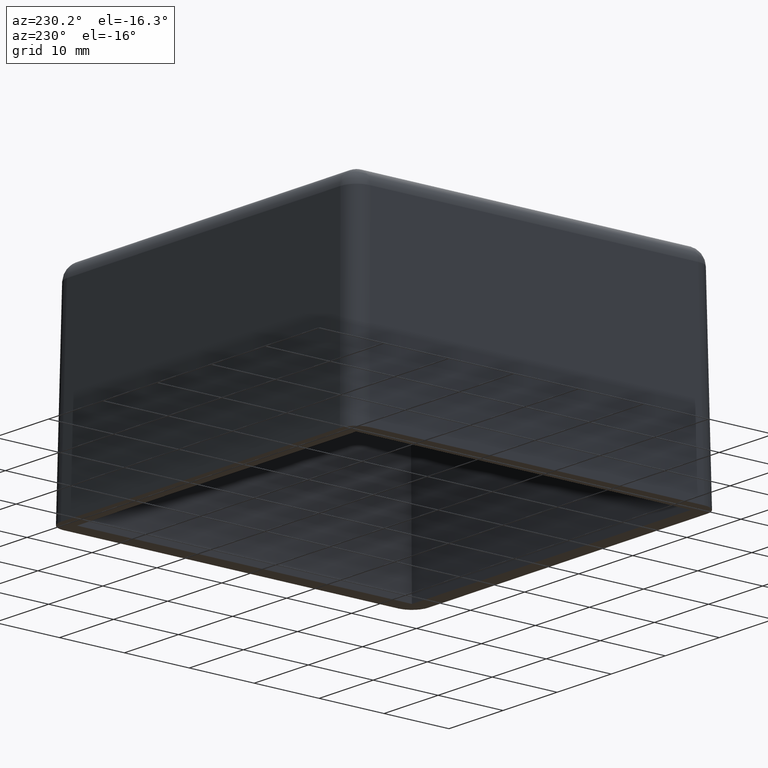
[diagram: clean part render]
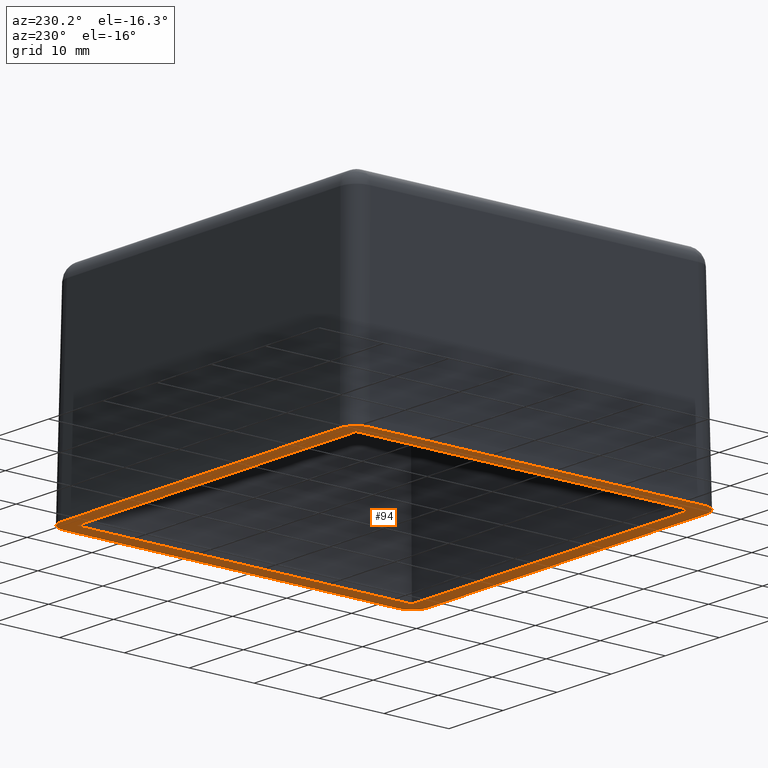
[diagram: same view with one face highlighted and labeled with its STEP entity id]
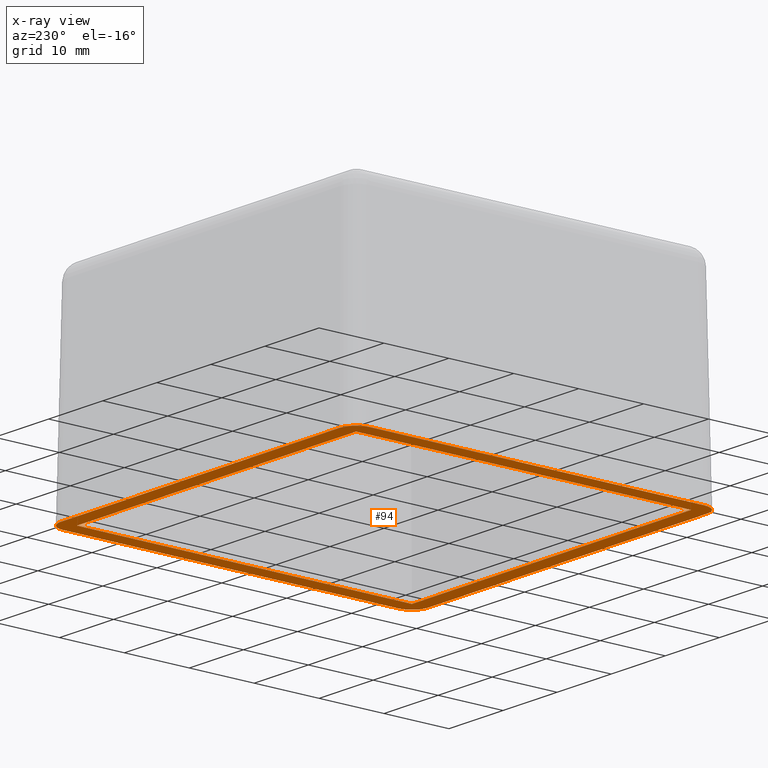
[diagram: x-ray of the same camera — body ghosted, the highlighted face saturated]
A machine part, auxiliary view. The second image highlights one B-rep face of the part: STEP entity #94.
The next image is the same camera in x-ray: the body ghosted, the highlighted face saturated — about 0% of this face is hidden behind the body in this view.
In plain terms, the highlighted planar face has unit normal (0, 0, 1).
Its self-contained STEP definition (entity closure, byte-faithful):
#94 = ADVANCED_FACE( '', ( #205, #206 ), #207, .F. );
#205 = FACE_BOUND( '', #383, .T. );
#206 = FACE_OUTER_BOUND( '', #384, .T. );
#207 = PLANE( '', #385 );
#383 = EDGE_LOOP( '', ( #733, #734, #735, #736 ) );
#384 = EDGE_LOOP( '', ( #737, #738, #739, #740, #741, #742, #743, #744 ) );
#385 = AXIS2_PLACEMENT_3D( '', #745, #746, #747 );
#733 = ORIENTED_EDGE( '', *, *, #1284, .T. );
#734 = ORIENTED_EDGE( '', *, *, #1285, .T. );
#735 = ORIENTED_EDGE( '', *, *, #1286, .T. );
#736 = ORIENTED_EDGE( '', *, *, #1287, .T. );
#737 = ORIENTED_EDGE( '', *, *, #1238, .F. );
#738 = ORIENTED_EDGE( '', *, *, #1269, .T. );
#739 = ORIENTED_EDGE( '', *, *, #1272, .F. );
#740 = ORIENTED_EDGE( '', *, *, #1281, .T. );
#741 = ORIENTED_EDGE( '', *, *, #1283, .F. );
#742 = ORIENTED_EDGE( '', *, *, #1288, .T. );
#743 = ORIENTED_EDGE( '', *, *, #1289, .F. );
#744 = ORIENTED_EDGE( '', *, *, #1290, .T. );
#745 = CARTESIAN_POINT( '', ( -28.3000000000000, -28.3000000000000, 0.000000000000000 ) );
#746 = DIRECTION( '', ( 0.000000000000000, 0.000000000000000, 1.00000000000000 ) );
#747 = DIRECTION( '', ( 0.000000000000000, -1.00000000000000, 0.000000000000000 ) );
#1238 = EDGE_CURVE( '', #1477, #1472, #1479, .F. );
#1269 = EDGE_CURVE( '', #1477, #1531, #1533, .F. );
#1272 = EDGE_CURVE( '', #1536, #1531, #1538, .F. );
#1281 = EDGE_CURVE( '', #1536, #1548, #1550, .F. );
#1283 = EDGE_CURVE( '', #1551, #1548, #1553, .F. );
#1284 = EDGE_CURVE( '', #1554, #1555, #1556, .F. );
#1285 = EDGE_CURVE( '', #1555, #1557, #1558, .F. );
#1286 = EDGE_CURVE( '', #1557, #1559, #1560, .F. );
#1287 = EDGE_CURVE( '', #1559, #1554, #1561, .F. );
#1288 = EDGE_CURVE( '', #1551, #1562, #1563, .F. );
#1289 = EDGE_CURVE( '', #1564, #1562, #1565, .F. );
#1290 = EDGE_CURVE( '', #1564, #1472, #1566, .F. );
#1472 = VERTEX_POINT( '', #1880 );
#1477 = VERTEX_POINT( '', #1887 );
#1479 = LINE( '', #1890, #1891 );
#1531 = VERTEX_POINT( '', #2044 );
#1533 = ELLIPSE( '', #2047, 2.50076158222762, 2.50000000000000 );
#1536 = VERTEX_POINT( '', #2051 );
#1538 = LINE( '', #2054, #2055 );
#1548 = VERTEX_POINT( '', #2066 );
#1550 = ELLIPSE( '', #2069, 2.50076158222762, 2.50000000000000 );
#1551 = VERTEX_POINT( '', #2070 );
#1553 = LINE( '', #2073, #2074 );
#1554 = VERTEX_POINT( '', #2075 );
#1555 = VERTEX_POINT( '', #2076 );
#1556 = LINE( '', #2077, #2078 );
#1557 = VERTEX_POINT( '', #2079 );
#1558 = LINE( '', #2080, #2081 );
#1559 = VERTEX_POINT( '', #2082 );
#1560 = LINE( '', #2083, #2084 );
#1561 = LINE( '', #2085, #2086 );
#1562 = VERTEX_POINT( '', #2087 );
#1563 = ELLIPSE( '', #2088, 2.50076158222762, 2.50000000000000 );
#1564 = VERTEX_POINT( '', #2089 );
#1565 = LINE( '', #2090, #2091 );
#1566 = ELLIPSE( '', #2092, 2.50076158222762, 2.50000000000000 );
#1880 = CARTESIAN_POINT( '', ( -28.3000000000000, -25.8003807621090, 0.000000000000000 ) );
#1887 = CARTESIAN_POINT( '', ( -28.3000000000000, 25.8003807621090, 0.000000000000000 ) );
#1890 = CARTESIAN_POINT( '', ( -28.3000000000000, -28.3000000000000, 0.000000000000000 ) );
#1891 = VECTOR( '', #2351, 1000.00000000000 );
#2044 = CARTESIAN_POINT( '', ( -25.8003807621090, 28.3000000000000, 0.000000000000000 ) );
#2047 = AXIS2_PLACEMENT_3D( '', #2375, #2376, #2377 );
#2051 = CARTESIAN_POINT( '', ( 25.8003807621090, 28.3000000000000, 0.000000000000000 ) );
#2054 = CARTESIAN_POINT( '', ( -28.3000000000000, 28.3000000000000, 0.000000000000000 ) );
#2055 = VECTOR( '', #2380, 1000.00000000000 );
#2066 = CARTESIAN_POINT( '', ( 28.3000000000000, 25.8003807621090, 0.000000000000000 ) );
#2069 = AXIS2_PLACEMENT_3D( '', #2401, #2402, #2403 );
#2070 = CARTESIAN_POINT( '', ( 28.3000000000000, -25.8003807621090, 0.000000000000000 ) );
#2073 = CARTESIAN_POINT( '', ( 28.3000000000000, -28.3000000000000, 0.000000000000000 ) );
#2074 = VECTOR( '', #2405, 1000.00000000000 );
#2075 = CARTESIAN_POINT( '', ( 25.8000000000000, 25.8000000000000, 0.000000000000000 ) );
#2076 = CARTESIAN_POINT( '', ( -25.8000000000000, 25.8000000000000, 0.000000000000000 ) );
#2077 = CARTESIAN_POINT( '', ( -25.8000000000000, 25.8000000000000, 0.000000000000000 ) );
#2078 = VECTOR( '', #2406, 1000.00000000000 );
#2079 = CARTESIAN_POINT( '', ( -25.8000000000000, -25.8000000000000, 0.000000000000000 ) );
#2080 = CARTESIAN_POINT( '', ( -25.8000000000000, -25.8000000000000, 0.000000000000000 ) );
#2081 = VECTOR( '', #2407, 1000.00000000000 );
#2082 = CARTESIAN_POINT( '', ( 25.8000000000000, -25.8000000000000, 0.000000000000000 ) );
#2083 = CARTESIAN_POINT( '', ( -25.8000000000000, -25.8000000000000, 0.000000000000000 ) );
#2084 = VECTOR( '', #2408, 1000.00000000000 );
#2085 = CARTESIAN_POINT( '', ( 25.8000000000000, -25.8000000000000, 0.000000000000000 ) );
#2086 = VECTOR( '', #2409, 1000.00000000000 );
#2087 = CARTESIAN_POINT( '', ( 25.8003807621090, -28.3000000000000, 0.000000000000000 ) );
#2088 = AXIS2_PLACEMENT_3D( '', #2410, #2411, #2412 );
#2089 = CARTESIAN_POINT( '', ( -25.8003807621090, -28.3000000000000, 0.000000000000000 ) );
#2090 = CARTESIAN_POINT( '', ( -28.3000000000000, -28.3000000000000, 0.000000000000000 ) );
#2091 = VECTOR( '', #2413, 1000.00000000000 );
#2092 = AXIS2_PLACEMENT_3D( '', #2414, #2415, #2416 );
#2351 = DIRECTION( '', ( 0.000000000000000, 1.00000000000000, 0.000000000000000 ) );
#2375 = CARTESIAN_POINT( '', ( -25.7996191798902, 25.7996191798902, 0.000000000000000 ) );
#2376 = DIRECTION( '', ( 0.000000000000000, 0.000000000000000, 1.00000000000000 ) );
#2377 = DIRECTION( '', ( -0.707106781186548, 0.707106781186548, 0.000000000000000 ) );
#2380 = DIRECTION( '', ( 1.00000000000000, 0.000000000000000, 0.000000000000000 ) );
#2401 = CARTESIAN_POINT( '', ( 25.7996191798902, 25.7996191798902, 0.000000000000000 ) );
#2402 = DIRECTION( '', ( 0.000000000000000, 0.000000000000000, 1.00000000000000 ) );
#2403 = DIRECTION( '', ( 0.707106781186548, 0.707106781186548, 0.000000000000000 ) );
#2405 = DIRECTION( '', ( 0.000000000000000, -1.00000000000000, 0.000000000000000 ) );
#2406 = DIRECTION( '', ( 1.00000000000000, 0.000000000000000, 0.000000000000000 ) );
#2407 = DIRECTION( '', ( 0.000000000000000, 1.00000000000000, 0.000000000000000 ) );
#2408 = DIRECTION( '', ( -1.00000000000000, 0.000000000000000, 0.000000000000000 ) );
#2409 = DIRECTION( '', ( 0.000000000000000, -1.00000000000000, 0.000000000000000 ) );
#2410 = CARTESIAN_POINT( '', ( 25.7996191798902, -25.7996191798902, 0.000000000000000 ) );
#2411 = DIRECTION( '', ( 0.000000000000000, 0.000000000000000, 1.00000000000000 ) );
#2412 = DIRECTION( '', ( 0.707106781186548, -0.707106781186548, 0.000000000000000 ) );
#2413 = DIRECTION( '', ( -1.00000000000000, 0.000000000000000, 0.000000000000000 ) );
#2414 = CARTESIAN_POINT( '', ( -25.7996191798902, -25.7996191798902, 0.000000000000000 ) );
#2415 = DIRECTION( '', ( 0.000000000000000, 0.000000000000000, 1.00000000000000 ) );
#2416 = DIRECTION( '', ( -0.707106781186548, -0.707106781186548, 0.000000000000000 ) );